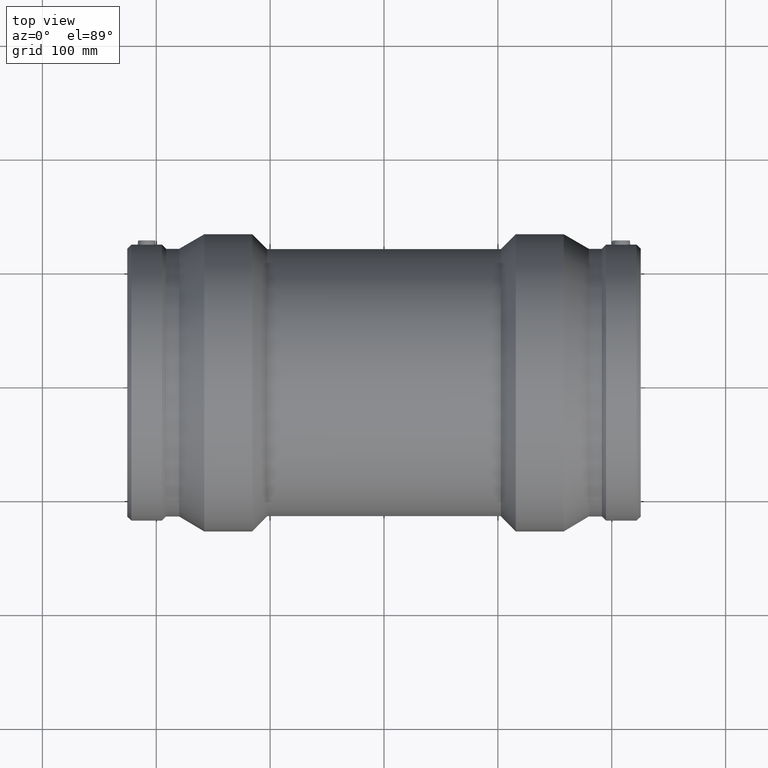
[diagram: clean part render]
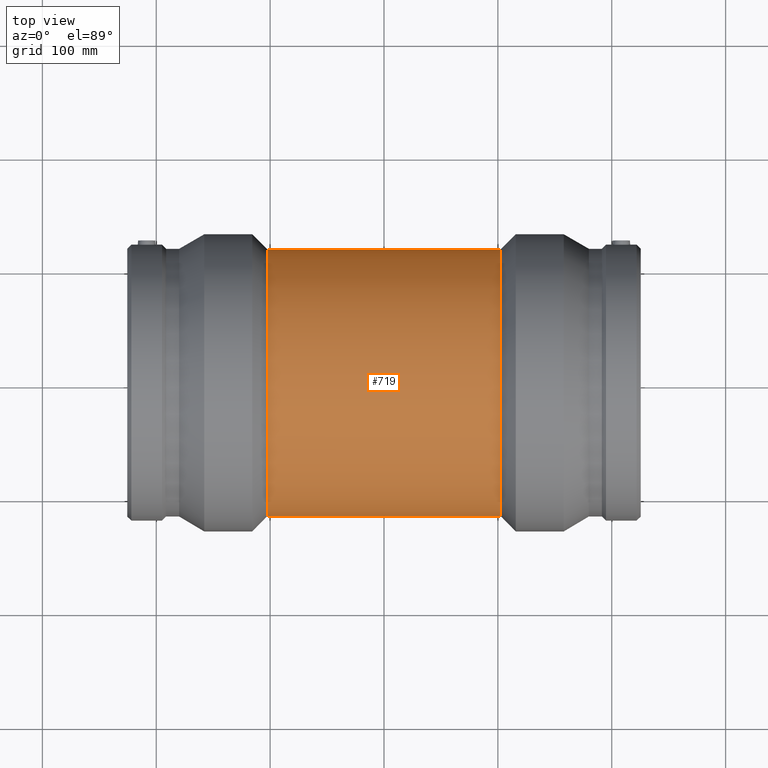
[diagram: same view with one face highlighted and labeled with its STEP entity id]
A machine part, top view. The second image highlights one B-rep face of the part: STEP entity #719.
In plain terms, the highlighted cylindrical surface (bore or boss wall) has radius 117.45 mm, axis along (1, 0, 0).
Its self-contained STEP definition (entity closure, byte-faithful):
#79=FACE_BOUND('',#331,.T.);
#80=FACE_BOUND('',#332,.T.);
#147=CIRCLE('',#807,117.45);
#148=CIRCLE('',#808,117.45);
#199=CYLINDRICAL_SURFACE('',#806,117.45);
#235=FACE_OUTER_BOUND('',#330,.T.);
#330=EDGE_LOOP('',(#616));
#331=EDGE_LOOP('',(#617));
#332=EDGE_LOOP('',(#618));
#416=B_SPLINE_CURVE_WITH_KNOTS('',3,(#1453,#1454,#1455,#1456,#1457,#1458,
#1459,#1460,#1461,#1462,#1463,#1464,#1465,#1466,#1467,#1468,#1469,#1470,
#1471,#1472,#1473,#1474,#1475,#1476,#1477,#1478,#1479,#1480,#1481,#1482,
#1483,#1484,#1485,#1486,#1487,#1488,#1489,#1490,#1491,#1492,#1493,#1494,
#1495,#1496,#1497,#1498,#1499,#1500,#1501,#1502,#1503,#1504,#1505,#1506,
#1507,#1508,#1509,#1510,#1511,#1512,#1513,#1514,#1515,#1516,#1517,#1518),
 .UNSPECIFIED.,.T.,.F.,(4,2,2,2,2,2,2,2,2,2,2,2,2,2,2,2,2,2,2,2,2,2,2,2,
2,2,2,2,2,2,2,2,4),(0.,1.20718004671123,2.41436009342246,3.6215401401337,
4.82872018684493,6.0315126657023,7.23430514455968,8.43709762341705,9.63989010227442,
10.8426825811318,12.0454750599892,13.2482675388465,14.4510600177039,15.6582400644152,
16.8654201111264,18.0726001578376,19.2797802045489,20.4869602512601,21.6941402979713,
22.9013203446825,24.1085003913938,25.3112928702511,26.5140853491085,27.7168778279659,
28.9196703068233,30.1224627856806,31.325255264538,32.5280477433954,33.7308402222528,
34.938020268964,36.1452003156752,37.3523803623865,38.5595604090977),
 .UNSPECIFIED.);
#439=VERTEX_POINT('',#1452);
#448=VERTEX_POINT('',#1545);
#449=VERTEX_POINT('',#1547);
#509=EDGE_CURVE('',#439,#439,#416,.T.);
#518=EDGE_CURVE('',#448,#448,#147,.T.);
#519=EDGE_CURVE('',#449,#449,#148,.T.);
#616=ORIENTED_EDGE('',*,*,#518,.F.);
#617=ORIENTED_EDGE('',*,*,#519,.T.);
#618=ORIENTED_EDGE('',*,*,#509,.T.);
#719=ADVANCED_FACE('',(#235,#79,#80),#199,.T.);
#806=AXIS2_PLACEMENT_3D('',#1544,#977,#978);
#807=AXIS2_PLACEMENT_3D('',#1546,#979,#980);
#808=AXIS2_PLACEMENT_3D('',#1548,#981,#982);
#977=DIRECTION('center_axis',(1.,0.,0.));
#978=DIRECTION('ref_axis',(0.,1.,0.));
#979=DIRECTION('center_axis',(1.,0.,0.));
#980=DIRECTION('ref_axis',(0.,0.,-1.));
#981=DIRECTION('center_axis',(1.,0.,0.));
#982=DIRECTION('ref_axis',(0.,0.,-1.));
#1452=CARTESIAN_POINT('',(-1.22124532708767E-14,62.5,-99.439692779091));
#1453=CARTESIAN_POINT('Ctrl Pts',(-1.22124532708767E-14,62.5,-99.439692779091));
#1454=CARTESIAN_POINT('Ctrl Pts',(-4.02393348903745,62.5,-99.439692779091));
#1455=CARTESIAN_POINT('Ctrl Pts',(-8.14961563923366,62.1053599372436,-99.691187477864));
#1456=CARTESIAN_POINT('Ctrl Pts',(-16.2939755540269,60.4813883252695,-100.684707156254));
#1457=CARTESIAN_POINT('Ctrl Pts',(-20.3130241794805,59.2527795533655,-101.42487240009));
#1458=CARTESIAN_POINT('Ctrl Pts',(-27.9772678113925,56.0427004076859,-103.233287223694));
#1459=CARTESIAN_POINT('Ctrl Pts',(-31.6300735132061,54.0586623142557,-104.300556964816));
#1460=CARTESIAN_POINT('Ctrl Pts',(-38.3710276162715,49.5021692808056,-106.538633318536));
#1461=CARTESIAN_POINT('Ctrl Pts',(-41.459359839794,46.9289878085245,-107.707406599836));
#1462=CARTESIAN_POINT('Ctrl Pts',(-46.9190479640442,41.4692996842743,-109.924743790305));
#1463=CARTESIAN_POINT('Ctrl Pts',(-49.4907469674574,38.3859551662737,-111.056273993475));
#1464=CARTESIAN_POINT('Ctrl Pts',(-54.0511383929314,31.643167175907,-113.162217714912));
#1465=CARTESIAN_POINT('Ctrl Pts',(-56.0401802321842,27.9834791281341,-114.135091193121));
#1466=CARTESIAN_POINT('Ctrl Pts',(-59.2562192010658,20.3046175182304,-115.748074180665));
#1467=CARTESIAN_POINT('Ctrl Pts',(-60.4857937250368,16.2779712978345,-116.388603481805));
#1468=CARTESIAN_POINT('Ctrl Pts',(-62.1079719242389,8.13040070708366,-117.239822391567));
#1469=CARTESIAN_POINT('Ctrl Pts',(-62.5,4.00930826285791,-117.45));
#1470=CARTESIAN_POINT('Ctrl Pts',(-62.5,-4.00930826285792,-117.45));
#1471=CARTESIAN_POINT('Ctrl Pts',(-62.1079719242389,-8.13040070708367,-117.239822391567));
#1472=CARTESIAN_POINT('Ctrl Pts',(-60.4857937250368,-16.2779712978345,-116.388603481805));
#1473=CARTESIAN_POINT('Ctrl Pts',(-59.2562192010658,-20.3046175182304,-115.748074180665));
#1474=CARTESIAN_POINT('Ctrl Pts',(-56.0401802321842,-27.9834791281341,-114.135091193121));
#1475=CARTESIAN_POINT('Ctrl Pts',(-54.0511383929314,-31.6431671759069,-113.162217714912));
#1476=CARTESIAN_POINT('Ctrl Pts',(-49.4907469674574,-38.3859551662737,-111.056273993475));
#1477=CARTESIAN_POINT('Ctrl Pts',(-46.9190479640442,-41.4692996842743,-109.924743790305));
#1478=CARTESIAN_POINT('Ctrl Pts',(-41.459359839794,-46.9289878085245,-107.707406599836));
#1479=CARTESIAN_POINT('Ctrl Pts',(-38.3710276162715,-49.5021692808056,-106.538633318536));
#1480=CARTESIAN_POINT('Ctrl Pts',(-31.6300735132061,-54.0586623142557,-104.300556964816));
#1481=CARTESIAN_POINT('Ctrl Pts',(-27.9772678113925,-56.0427004076859,-103.233287223694));
#1482=CARTESIAN_POINT('Ctrl Pts',(-20.3130241794805,-59.2527795533655,-101.42487240009));
#1483=CARTESIAN_POINT('Ctrl Pts',(-16.2939755540269,-60.4813883252695,-100.684707156254));
#1484=CARTESIAN_POINT('Ctrl Pts',(-8.14961563923364,-62.1053599372436,-99.691187477864));
#1485=CARTESIAN_POINT('Ctrl Pts',(-4.02393348903744,-62.5,-99.439692779091));
#1486=CARTESIAN_POINT('Ctrl Pts',(4.02393348903742,-62.5,-99.439692779091));
#1487=CARTESIAN_POINT('Ctrl Pts',(8.14961563923363,-62.1053599372436,-99.691187477864));
#1488=CARTESIAN_POINT('Ctrl Pts',(16.2939755540268,-60.4813883252695,-100.684707156254));
#1489=CARTESIAN_POINT('Ctrl Pts',(20.3130241794804,-59.2527795533655,-101.42487240009));
#1490=CARTESIAN_POINT('Ctrl Pts',(27.9772678113924,-56.0427004076859,-103.233287223694));
#1491=CARTESIAN_POINT('Ctrl Pts',(31.630073513206,-54.0586623142557,-104.300556964816));
#1492=CARTESIAN_POINT('Ctrl Pts',(38.3710276162715,-49.5021692808056,-106.538633318536));
#1493=CARTESIAN_POINT('Ctrl Pts',(41.4593598397939,-46.9289878085245,-107.707406599836));
#1494=CARTESIAN_POINT('Ctrl Pts',(46.9190479640441,-41.4692996842743,-109.924743790305));
#1495=CARTESIAN_POINT('Ctrl Pts',(49.4907469674574,-38.3859551662737,-111.056273993475));
#1496=CARTESIAN_POINT('Ctrl Pts',(54.0511383929314,-31.643167175907,-113.162217714912));
#1497=CARTESIAN_POINT('Ctrl Pts',(56.0401802321842,-27.9834791281341,-114.135091193121));
#1498=CARTESIAN_POINT('Ctrl Pts',(59.2562192010657,-20.3046175182304,-115.748074180665));
#1499=CARTESIAN_POINT('Ctrl Pts',(60.4857937250368,-16.2779712978345,-116.388603481805));
#1500=CARTESIAN_POINT('Ctrl Pts',(62.1079719242388,-8.13040070708368,-117.239822391567));
#1501=CARTESIAN_POINT('Ctrl Pts',(62.5,-4.00930826285793,-117.45));
#1502=CARTESIAN_POINT('Ctrl Pts',(62.5,4.00930826285791,-117.45));
#1503=CARTESIAN_POINT('Ctrl Pts',(62.1079719242388,8.13040070708366,-117.239822391567));
#1504=CARTESIAN_POINT('Ctrl Pts',(60.4857937250368,16.2779712978345,-116.388603481805));
#1505=CARTESIAN_POINT('Ctrl Pts',(59.2562192010657,20.3046175182304,-115.748074180665));
#1506=CARTESIAN_POINT('Ctrl Pts',(56.0401802321842,27.9834791281341,-114.135091193121));
#1507=CARTESIAN_POINT('Ctrl Pts',(54.0511383929314,31.6431671759069,-113.162217714912));
#1508=CARTESIAN_POINT('Ctrl Pts',(49.4907469674574,38.3859551662737,-111.056273993475));
#1509=CARTESIAN_POINT('Ctrl Pts',(46.9190479640442,41.4692996842743,-109.924743790305));
#1510=CARTESIAN_POINT('Ctrl Pts',(41.4593598397939,46.9289878085245,-107.707406599836));
#1511=CARTESIAN_POINT('Ctrl Pts',(38.3710276162715,49.5021692808056,-106.538633318536));
#1512=CARTESIAN_POINT('Ctrl Pts',(31.6300735132061,54.0586623142557,-104.300556964816));
#1513=CARTESIAN_POINT('Ctrl Pts',(27.9772678113924,56.0427004076859,-103.233287223694));
#1514=CARTESIAN_POINT('Ctrl Pts',(20.3130241794804,59.2527795533655,-101.42487240009));
#1515=CARTESIAN_POINT('Ctrl Pts',(16.2939755540268,60.4813883252695,-100.684707156254));
#1516=CARTESIAN_POINT('Ctrl Pts',(8.14961563923363,62.1053599372436,-99.691187477864));
#1517=CARTESIAN_POINT('Ctrl Pts',(4.02393348903742,62.5,-99.439692779091));
#1518=CARTESIAN_POINT('Ctrl Pts',(-1.22124532708767E-14,62.5,-99.439692779091));
#1544=CARTESIAN_POINT('Origin',(0.,0.,0.));
#1545=CARTESIAN_POINT('',(102.6025,117.45,0.));
#1546=CARTESIAN_POINT('Origin',(102.6025,0.,0.));
#1547=CARTESIAN_POINT('',(-102.6025,117.45,0.));
#1548=CARTESIAN_POINT('Origin',(-102.6025,0.,0.));